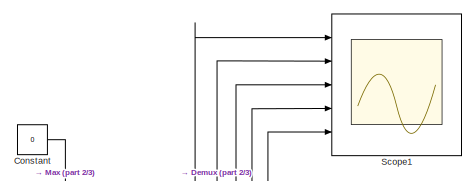
[diagram: root canvas - part 1/3, top left region]
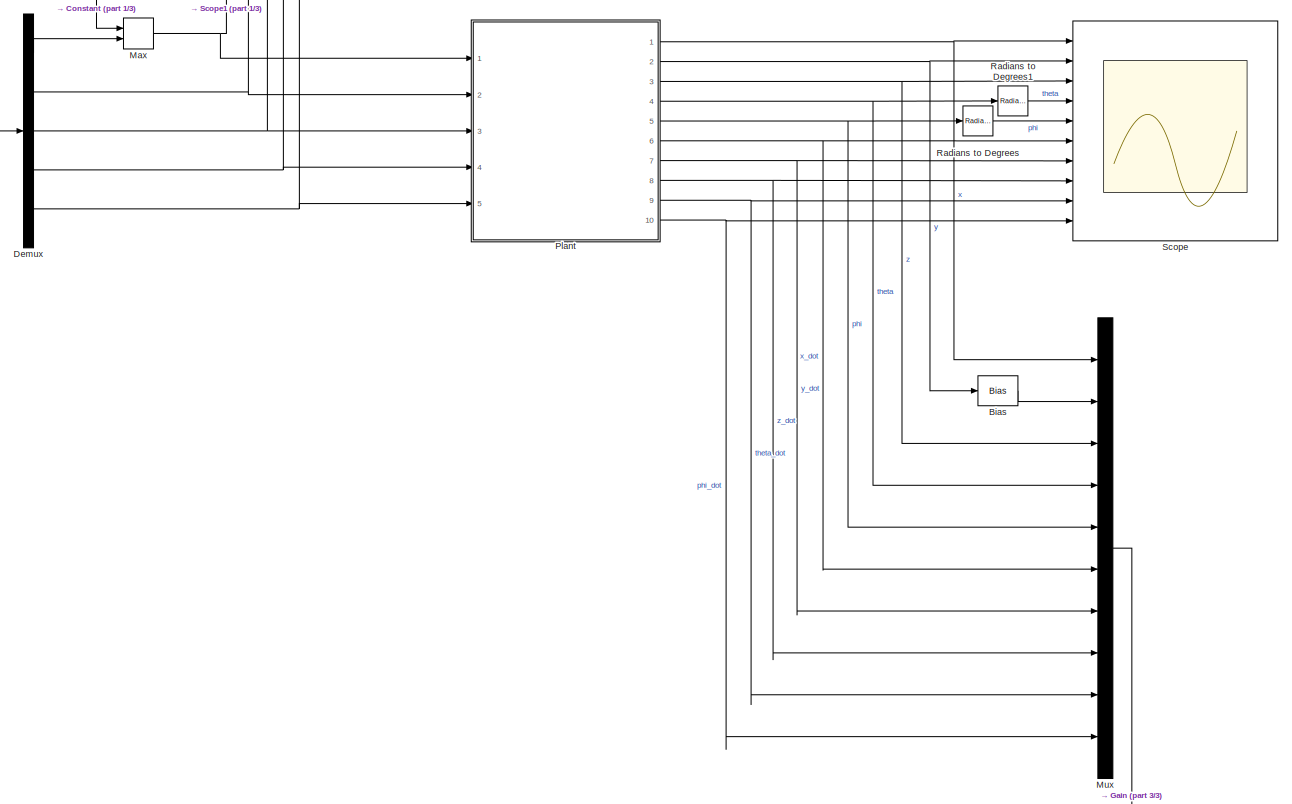
[diagram: root canvas - part 2/3, full width, middle band]
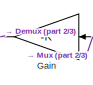
[diagram: root canvas - part 3/3, bottom center region]
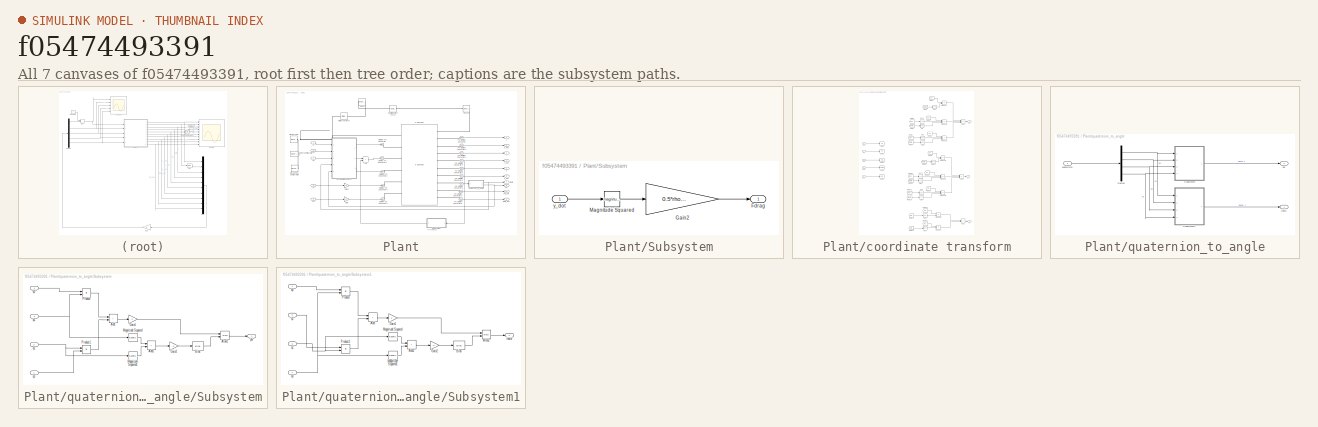
[diagram: thumbnail index - all 7 canvases of the model, root first then tree order]
MODEL slx_f05474493391
KIND model
CONFIG AbsTol = auto
CONFIG EnableMultiTasking = off
CONFIG FixedStep = 0.0001
CONFIG InitFcn = model_3d_init
CONFIG MaxStep = auto
CONFIG MinStep = auto
CONFIG RelTol = 1e-3
CONFIG SampleTimeConstraint = Unconstrained
CONFIG SolverName = FixedStepAuto
CONFIG StartTime = 0.0
CONFIG StopTime = 10
BLOCK [Bias] Bias
  Bias = -l/2
  SaturateOnIntegerOverflow = off
BLOCK [Constant] Constant
  Value = 0
BLOCK [Demux] Demux
  Outputs = 5
  Ports = [1, 5]
BLOCK [Gain] Gain
  Gain = -K
  Multiplication = Matrix(K*u)
  NameLocation = top
BLOCK [MinMax] Max
  Function = max
  Inputs = 2
  Ports = [2, 1]
BLOCK [Mux] Mux
  DisplayOption = bar
  Inputs = 10
  Ports = [10, 1]
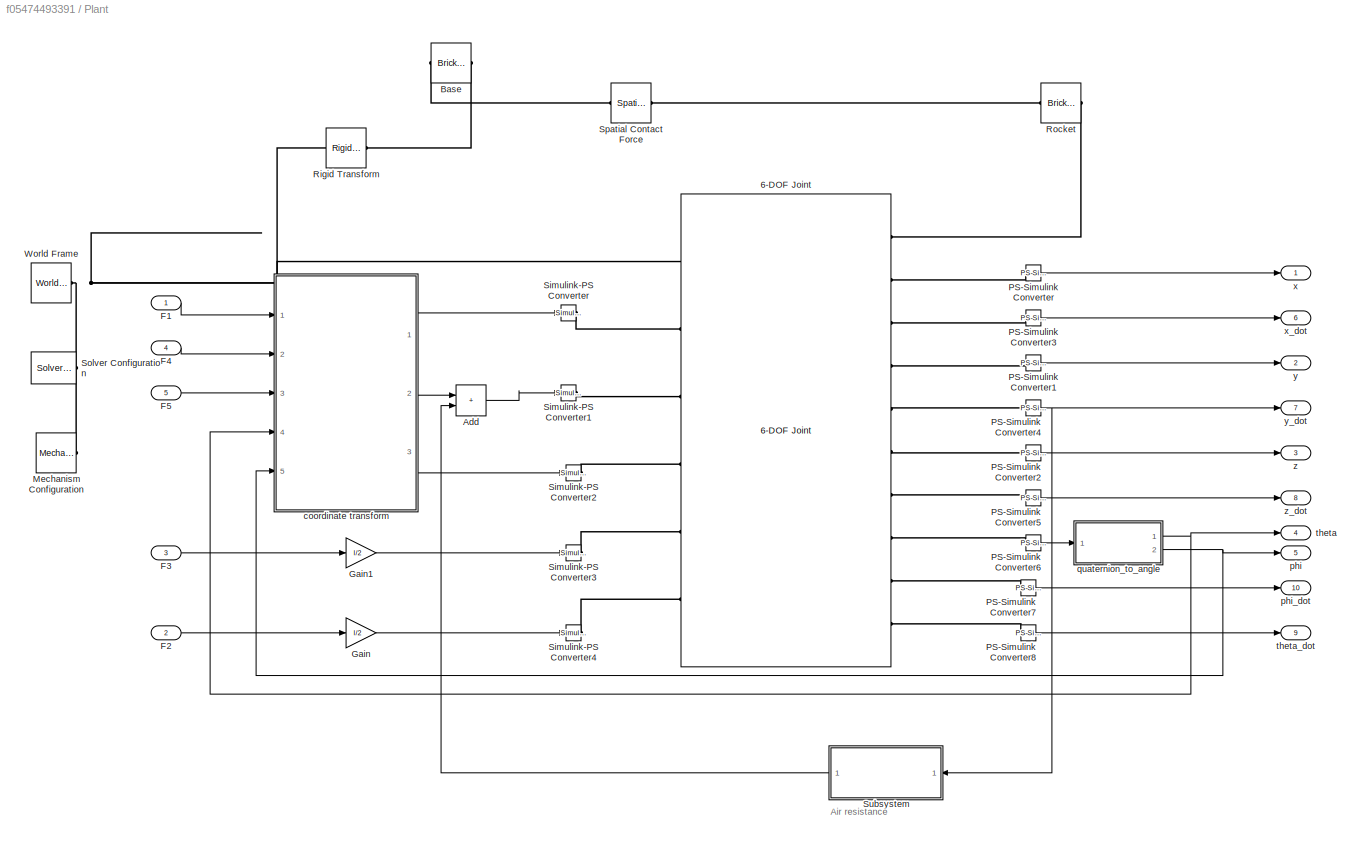
BLOCK [SubSystem] Plant
  Ports = [5, 10]
  RequestExecContextInheritance = off
BLOCK [Reference] Plant/6-DOF Joint  REF=sm_lib/Joints/6-DOF Joint
  Ports = [0, 0, 0, 0, 0, 6, 10]
  SourceBlock = sm_lib/Joints/6-DOF Joint
  SourceProductBaseCode = MS
  SourceType = 6-DOF Joint
BLOCK [Sum] Plant/Add
  IconShape = rectangular
  Ports = [2, 1]
BLOCK [Reference] Plant/Base  REF=sm_lib/Body Elements/Brick Solid
  Ports = [0, 0, 0, 0, 0, 1, 1]
  SourceBlock = sm_lib/Body Elements/Brick Solid
  SourceProductBaseCode = MS
  SourceType = Brick Solid
BLOCK [Inport] Plant/F1
BLOCK [Inport] Plant/F2
  Port = 2
BLOCK [Inport] Plant/F3
  Port = 3
BLOCK [Inport] Plant/F4
  Port = 4
BLOCK [Inport] Plant/F5
  Port = 5
BLOCK [Gain] Plant/Gain
  Gain = l/2
BLOCK [Gain] Plant/Gain1
  Gain = l/2
BLOCK [Reference] Plant/Mechanism Configuration  REF=sm_lib/Utilities/Mechanism
Configuration
  Ports = [0, 0, 0, 0, 0, 0, 1]
  SourceBlock = sm_lib/Utilities/Mechanism\nConfiguration
  SourceProductBaseCode = MS
  SourceType = Mechanism\nConfiguration
BLOCK [Reference] Plant/PS-Simulink Converter  REF=nesl_utility/PS-Simulink
Converter
  Ports = [0, 1, 0, 0, 0, 1]
  SourceBlock = nesl_utility/PS-Simulink\nConverter
  SourceProductBaseCode = SS,PW,VE
  SourceType = PS-Simulink\nConverter
BLOCK [Reference] Plant/PS-Simulink Converter1  REF=nesl_utility/PS-Simulink
Converter
  Ports = [0, 1, 0, 0, 0, 1]
  SourceBlock = nesl_utility/PS-Simulink\nConverter
  SourceProductBaseCode = SS,PW,VE
  SourceType = PS-Simulink\nConverter
BLOCK [Reference] Plant/PS-Simulink Converter2  REF=nesl_utility/PS-Simulink
Converter
  Ports = [0, 1, 0, 0, 0, 1]
  SourceBlock = nesl_utility/PS-Simulink\nConverter
  SourceProductBaseCode = SS,PW,VE
  SourceType = PS-Simulink\nConverter
BLOCK [Reference] Plant/PS-Simulink Converter3  REF=nesl_utility/PS-Simulink
Converter
  Ports = [0, 1, 0, 0, 0, 1]
  SourceBlock = nesl_utility/PS-Simulink\nConverter
  SourceProductBaseCode = SS,PW,VE
  SourceType = PS-Simulink\nConverter
BLOCK [Reference] Plant/PS-Simulink Converter4  REF=nesl_utility/PS-Simulink
Converter
  Ports = [0, 1, 0, 0, 0, 1]
  SourceBlock = nesl_utility/PS-Simulink\nConverter
  SourceProductBaseCode = SS,PW,VE
  SourceType = PS-Simulink\nConverter
BLOCK [Reference] Plant/PS-Simulink Converter5  REF=nesl_utility/PS-Simulink
Converter
  Ports = [0, 1, 0, 0, 0, 1]
  SourceBlock = nesl_utility/PS-Simulink\nConverter
  SourceProductBaseCode = SS,PW,VE
  SourceType = PS-Simulink\nConverter
BLOCK [Reference] Plant/PS-Simulink Converter6  REF=nesl_utility/PS-Simulink
Converter
  Ports = [0, 1, 0, 0, 0, 1]
  SourceBlock = nesl_utility/PS-Simulink\nConverter
  SourceProductBaseCode = SS,PW,VE
  SourceType = PS-Simulink\nConverter
BLOCK [Reference] Plant/PS-Simulink Converter7  REF=nesl_utility/PS-Simulink
Converter
  Ports = [0, 1, 0, 0, 0, 1]
  SourceBlock = nesl_utility/PS-Simulink\nConverter
  SourceProductBaseCode = SS,PW,VE
  SourceType = PS-Simulink\nConverter
BLOCK [Reference] Plant/PS-Simulink Converter8  REF=nesl_utility/PS-Simulink
Converter
  Ports = [0, 1, 0, 0, 0, 1]
  SourceBlock = nesl_utility/PS-Simulink\nConverter
  SourceProductBaseCode = SS,PW,VE
  SourceType = PS-Simulink\nConverter
BLOCK [Reference] Plant/Rigid Transform  REF=sm_lib/Frames and
Transforms/Rigid
Transform
  Ports = [0, 0, 0, 0, 0, 1, 1]
  SourceBlock = sm_lib/Frames and\nTransforms/Rigid\nTransform
  SourceProductBaseCode = MS
  SourceType = Rigid\nTransform
BLOCK [Reference] Plant/Rocket  REF=sm_lib/Body Elements/Brick Solid
  Ports = [0, 0, 0, 0, 0, 1, 1]
  SourceBlock = sm_lib/Body Elements/Brick Solid
  SourceProductBaseCode = MS
  SourceType = Brick Solid
BLOCK [Reference] Plant/Simulink-PS Converter  REF=nesl_utility/Simulink-PS
Converter
  Ports = [1, 0, 0, 0, 0, 0, 1]
  SourceBlock = nesl_utility/Simulink-PS\nConverter
  SourceProductBaseCode = SS,PW,VE
  SourceType = Simulink-PS\nConverter
BLOCK [Reference] Plant/Simulink-PS Converter1  REF=nesl_utility/Simulink-PS
Converter
  Ports = [1, 0, 0, 0, 0, 0, 1]
  SourceBlock = nesl_utility/Simulink-PS\nConverter
  SourceProductBaseCode = SS,PW,VE
  SourceType = Simulink-PS\nConverter
BLOCK [Reference] Plant/Simulink-PS Converter2  REF=nesl_utility/Simulink-PS
Converter
  Ports = [1, 0, 0, 0, 0, 0, 1]
  SourceBlock = nesl_utility/Simulink-PS\nConverter
  SourceProductBaseCode = SS,PW,VE
  SourceType = Simulink-PS\nConverter
BLOCK [Reference] Plant/Simulink-PS Converter3  REF=nesl_utility/Simulink-PS
Converter
  Ports = [1, 0, 0, 0, 0, 0, 1]
  SourceBlock = nesl_utility/Simulink-PS\nConverter
  SourceProductBaseCode = SS,PW,VE
  SourceType = Simulink-PS\nConverter
BLOCK [Reference] Plant/Simulink-PS Converter4  REF=nesl_utility/Simulink-PS
Converter
  Ports = [1, 0, 0, 0, 0, 0, 1]
  SourceBlock = nesl_utility/Simulink-PS\nConverter
  SourceProductBaseCode = SS,PW,VE
  SourceType = Simulink-PS\nConverter
BLOCK [Reference] Plant/Solver Configuration  REF=nesl_utility/Solver
Configuration
  Ports = [0, 0, 0, 0, 0, 0, 1]
  SourceBlock = nesl_utility/Solver\nConfiguration
  SourceProductBaseCode = SS,PW,VE
  SourceType = Solver\nConfiguration
BLOCK [Reference] Plant/Spatial Contact Force  REF=sm_lib/Forces and
Torques/Spatial
Contact Force
  Ports = [0, 0, 0, 0, 0, 1, 1]
  SourceBlock = sm_lib/Forces and\nTorques/Spatial\nContact Force
  SourceProductBaseCode = MS
  SourceType = Spatial\nContact Force
BLOCK [SubSystem] Plant/Subsystem
  NameLocation = top
  Ports = [1, 1]
  RequestExecContextInheritance = off
BLOCK [Outport] Plant/Subsystem/Fdrag
BLOCK [Gain] Plant/Subsystem/Gain2
  Gain = 0.5*rho*As*Cd
BLOCK [Math] Plant/Subsystem/Magnitude Squared
  Operator = magnitude^2
  Ports = [1, 1]
BLOCK [Inport] Plant/Subsystem/y_dot
BLOCK [Reference] Plant/World Frame  REF=sm_lib/Frames and
Transforms/World Frame
  Ports = [0, 0, 0, 0, 0, 0, 1]
  SourceBlock = sm_lib/Frames and\nTransforms/World Frame
  SourceProductBaseCode = MS
  SourceType = World Frame
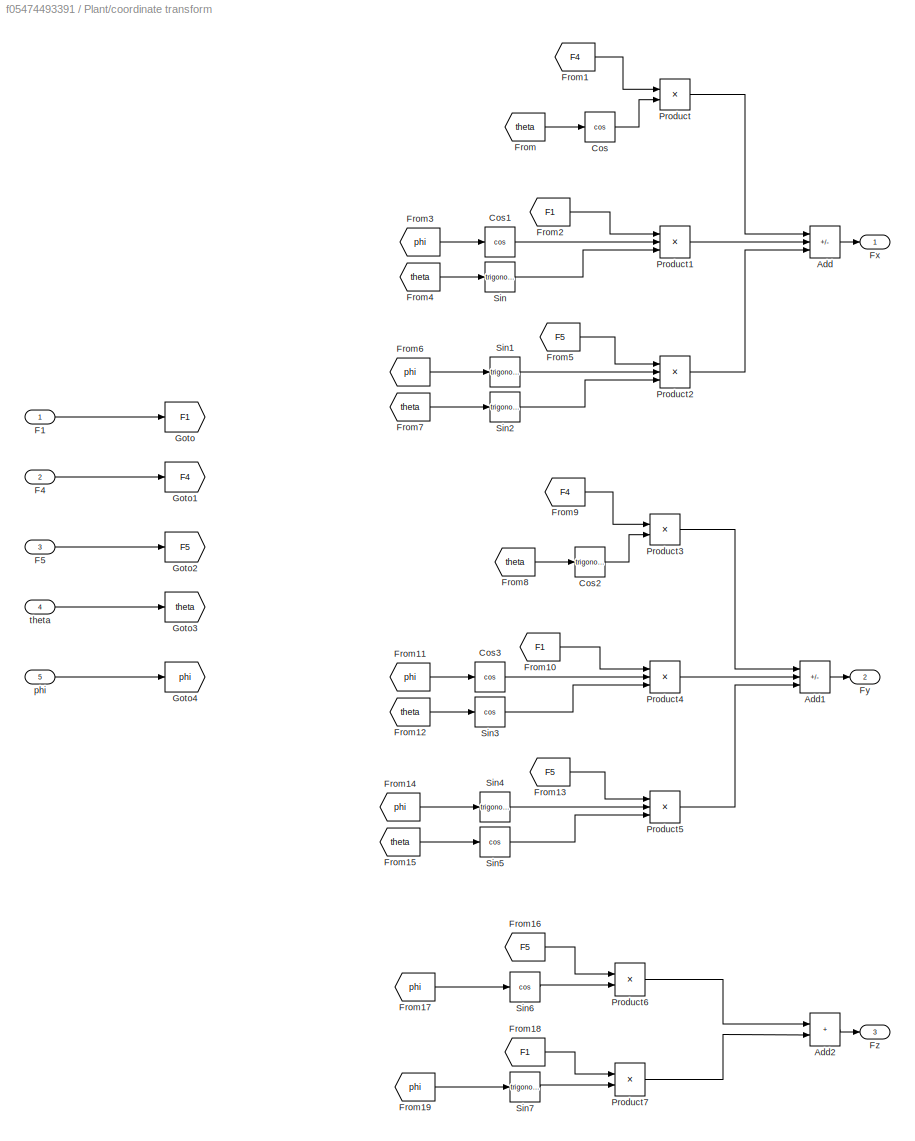
BLOCK [SubSystem] Plant/coordinate transform
  Ports = [5, 3]
  RequestExecContextInheritance = off
BLOCK [Sum] Plant/coordinate transform/Add
  IconShape = rectangular
  Inputs = +-+
  Ports = [3, 1]
BLOCK [Sum] Plant/coordinate transform/Add1
  IconShape = rectangular
  Inputs = ++-
  Ports = [3, 1]
BLOCK [Sum] Plant/coordinate transform/Add2
  IconShape = rectangular
  Ports = [2, 1]
BLOCK [Trigonometry] Plant/coordinate transform/Cos
  Operator = cos
  Ports = [1, 1]
BLOCK [Trigonometry] Plant/coordinate transform/Cos1
  Operator = cos
  Ports = [1, 1]
BLOCK [Trigonometry] Plant/coordinate transform/Cos2
  Ports = [1, 1]
BLOCK [Trigonometry] Plant/coordinate transform/Cos3
  Operator = cos
  Ports = [1, 1]
BLOCK [Inport] Plant/coordinate transform/F1
BLOCK [Inport] Plant/coordinate transform/F4
  Port = 2
BLOCK [Inport] Plant/coordinate transform/F5
  Port = 3
BLOCK [From] Plant/coordinate transform/From
  GotoTag = theta
BLOCK [From] Plant/coordinate transform/From1
  GotoTag = F4
BLOCK [From] Plant/coordinate transform/From10
  GotoTag = F1
BLOCK [From] Plant/coordinate transform/From11
  GotoTag = phi
BLOCK [From] Plant/coordinate transform/From12
  GotoTag = theta
BLOCK [From] Plant/coordinate transform/From13
  GotoTag = F5
BLOCK [From] Plant/coordinate transform/From14
  GotoTag = phi
BLOCK [From] Plant/coordinate transform/From15
  GotoTag = theta
BLOCK [From] Plant/coordinate transform/From16
  GotoTag = F5
BLOCK [From] Plant/coordinate transform/From17
  GotoTag = phi
BLOCK [From] Plant/coordinate transform/From18
  GotoTag = F1
BLOCK [From] Plant/coordinate transform/From19
  GotoTag = phi
BLOCK [From] Plant/coordinate transform/From2
  GotoTag = F1
BLOCK [From] Plant/coordinate transform/From3
  GotoTag = phi
BLOCK [From] Plant/coordinate transform/From4
  GotoTag = theta
BLOCK [From] Plant/coordinate transform/From5
  GotoTag = F5
BLOCK [From] Plant/coordinate transform/From6
  GotoTag = phi
BLOCK [From] Plant/coordinate transform/From7
  GotoTag = theta
BLOCK [From] Plant/coordinate transform/From8
  GotoTag = theta
BLOCK [From] Plant/coordinate transform/From9
  GotoTag = F4
BLOCK [Outport] Plant/coordinate transform/Fx
BLOCK [Outport] Plant/coordinate transform/Fy
  Port = 2
BLOCK [Outport] Plant/coordinate transform/Fz
  Port = 3
BLOCK [Goto] Plant/coordinate transform/Goto
  GotoTag = F1
BLOCK [Goto] Plant/coordinate transform/Goto1
  GotoTag = F4
BLOCK [Goto] Plant/coordinate transform/Goto2
  GotoTag = F5
BLOCK [Goto] Plant/coordinate transform/Goto3
  GotoTag = theta
BLOCK [Goto] Plant/coordinate transform/Goto4
  GotoTag = phi
BLOCK [Product] Plant/coordinate transform/Product
  Ports = [2, 1]
BLOCK [Product] Plant/coordinate transform/Product1
  Inputs = 3
  Ports = [3, 1]
BLOCK [Product] Plant/coordinate transform/Product2
  Inputs = 3
  Ports = [3, 1]
BLOCK [Product] Plant/coordinate transform/Product3
  Ports = [2, 1]
BLOCK [Product] Plant/coordinate transform/Product4
  Inputs = 3
  Ports = [3, 1]
BLOCK [Product] Plant/coordinate transform/Product5
  Inputs = 3
  Ports = [3, 1]
BLOCK [Product] Plant/coordinate transform/Product6
  Ports = [2, 1]
BLOCK [Product] Plant/coordinate transform/Product7
  Ports = [2, 1]
BLOCK [Trigonometry] Plant/coordinate transform/Sin
  Ports = [1, 1]
BLOCK [Trigonometry] Plant/coordinate transform/Sin1
  Ports = [1, 1]
BLOCK [Trigonometry] Plant/coordinate transform/Sin2
  Ports = [1, 1]
BLOCK [Trigonometry] Plant/coordinate transform/Sin3
  Operator = cos
  Ports = [1, 1]
BLOCK [Trigonometry] Plant/coordinate transform/Sin4
  Ports = [1, 1]
BLOCK [Trigonometry] Plant/coordinate transform/Sin5
  Operator = cos
  Ports = [1, 1]
BLOCK [Trigonometry] Plant/coordinate transform/Sin6
  Operator = cos
  Ports = [1, 1]
BLOCK [Trigonometry] Plant/coordinate transform/Sin7
  Ports = [1, 1]
BLOCK [Inport] Plant/coordinate transform/phi
  Port = 5
BLOCK [Inport] Plant/coordinate transform/theta
  Port = 4
BLOCK [Outport] Plant/phi
  Port = 5
BLOCK [Outport] Plant/phi_dot
  Port = 10
BLOCK [SubSystem] Plant/quaternion_to_angle
  Ports = [1, 2]
  RequestExecContextInheritance = off
BLOCK [Demux] Plant/quaternion_to_angle/Demux
  Ports = [1, 4]
BLOCK [SubSystem] Plant/quaternion_to_angle/Subsystem
  Ports = [4, 1]
  RequestExecContextInheritance = off
BLOCK [Sum] Plant/quaternion_to_angle/Subsystem/Add
  IconShape = rectangular
  Ports = [2, 1]
BLOCK [Sum] Plant/quaternion_to_angle/Subsystem/Add1
  IconShape = rectangular
  Ports = [2, 1]
BLOCK [Trigonometry] Plant/quaternion_to_angle/Subsystem/Atan2
  Operator = atan2
  Ports = [2, 1]
BLOCK [Bias] Plant/quaternion_to_angle/Subsystem/Bias
  Bias = 1
  SaturateOnIntegerOverflow = off
BLOCK [Gain] Plant/quaternion_to_angle/Subsystem/Gain1
  Gain = 2
BLOCK [Gain] Plant/quaternion_to_angle/Subsystem/Gain2
  Gain = -2
BLOCK [Math] Plant/quaternion_to_angle/Subsystem/Magnitude Squared
  Operator = magnitude^2
  Ports = [1, 1]
BLOCK [Math] Plant/quaternion_to_angle/Subsystem/Magnitude Squared1
  Operator = magnitude^2
  Ports = [1, 1]
BLOCK [Product] Plant/quaternion_to_angle/Subsystem/Product
  Ports = [2, 1]
BLOCK [Product] Plant/quaternion_to_angle/Subsystem/Product1
  Ports = [2, 1]
BLOCK [Outport] Plant/quaternion_to_angle/Subsystem/phi
BLOCK [Inport] Plant/quaternion_to_angle/Subsystem/q0
BLOCK [Inport] Plant/quaternion_to_angle/Subsystem/q1
  Port = 2
BLOCK [Inport] Plant/quaternion_to_angle/Subsystem/q2
  Port = 3
BLOCK [Inport] Plant/quaternion_to_angle/Subsystem/q3
  Port = 4
BLOCK [SubSystem] Plant/quaternion_to_angle/Subsystem1
  Ports = [4, 1]
  RequestExecContextInheritance = off
BLOCK [Sum] Plant/quaternion_to_angle/Subsystem1/Add
  IconShape = rectangular
  Ports = [2, 1]
BLOCK [Sum] Plant/quaternion_to_angle/Subsystem1/Add1
  IconShape = rectangular
  Ports = [2, 1]
BLOCK [Trigonometry] Plant/quaternion_to_angle/Subsystem1/Atan2
  Operator = atan2
  Ports = [2, 1]
BLOCK [Bias] Plant/quaternion_to_angle/Subsystem1/Bias
  Bias = 1
  SaturateOnIntegerOverflow = off
BLOCK [Gain] Plant/quaternion_to_angle/Subsystem1/Gain1
  Gain = 2
BLOCK [Gain] Plant/quaternion_to_angle/Subsystem1/Gain2
  Gain = -2
BLOCK [Math] Plant/quaternion_to_angle/Subsystem1/Magnitude Squared
  Operator = magnitude^2
  Ports = [1, 1]
BLOCK [Math] Plant/quaternion_to_angle/Subsystem1/Magnitude Squared1
  Operator = magnitude^2
  Ports = [1, 1]
BLOCK [Product] Plant/quaternion_to_angle/Subsystem1/Product
  Ports = [2, 1]
BLOCK [Product] Plant/quaternion_to_angle/Subsystem1/Product1
  Ports = [2, 1]
BLOCK [Inport] Plant/quaternion_to_angle/Subsystem1/q0
BLOCK [Inport] Plant/quaternion_to_angle/Subsystem1/q1
  Port = 2
BLOCK [Inport] Plant/quaternion_to_angle/Subsystem1/q2
  Port = 3
BLOCK [Inport] Plant/quaternion_to_angle/Subsystem1/q3
  Port = 4
BLOCK [Outport] Plant/quaternion_to_angle/Subsystem1/theta
BLOCK [Outport] Plant/quaternion_to_angle/phi
  Port = 2
BLOCK [Inport] Plant/quaternion_to_angle/quaternion
BLOCK [Outport] Plant/quaternion_to_angle/theta
BLOCK [Outport] Plant/theta
  Port = 4
BLOCK [Outport] Plant/theta_dot
  Port = 9
BLOCK [Outport] Plant/x
BLOCK [Outport] Plant/x_dot
  Port = 6
BLOCK [Outport] Plant/y
  Port = 2
BLOCK [Outport] Plant/y_dot
  Port = 7
BLOCK [Outport] Plant/z
  Port = 3
BLOCK [Outport] Plant/z_dot
  Port = 8
BLOCK [Reference] Radians to Degrees  REF=simulink_extras/Transformations/Radians
to Degrees
  Ports = [1, 1]
  SourceBlock = simulink_extras/Transformations/Radians\nto Degrees
  SourceProductBaseCode = SL
  SourceType = RadiansToDegrees
BLOCK [Reference] Radians to Degrees1  REF=simulink_extras/Transformations/Radians
to Degrees
  Ports = [1, 1]
  SourceBlock = simulink_extras/Transformations/Radians\nto Degrees
  SourceProductBaseCode = SL
  SourceType = RadiansToDegrees
BLOCK [Scope] Scope
  Floating = off
  NumInputPorts = 10
  Ports = [10]
  ScopeSpecificationString = Simulink.scopes.TimeScopeBlockCfg('CurrentConfiguration', extmgr.ConfigurationSet(extmgr.Configuration('Core','General UI',true),extmgr.Configuration('Core','Source UI',true),extmgr.Configuration('Sources','WiredSimulink',true),extmgr.Configuration('Visuals','Time Domain',true,'SerializedDisplays',{struct('MinYLimReal','-0.06678','MaxYLimReal','0.12607','YLabelReal','','MinYLimMag','0.00000','MaxY...<+9915ch>
BLOCK [Scope] Scope1
  Floating = off
  NumInputPorts = 5
  Ports = [5]
  ScopeSpecificationString = Simulink.scopes.TimeScopeBlockCfg('CurrentConfiguration', extmgr.ConfigurationSet(extmgr.Configuration('Core','General UI',true),extmgr.Configuration('Core','Source UI',true),extmgr.Configuration('Sources','WiredSimulink',true,'DataLoggingVariableName','ScopeData1'),extmgr.Configuration('Visuals','Time Domain',true,'SerializedDisplays',{struct('MinYLimReal','-1.33026','MaxYLimReal','11.97234','YLa...<+6184ch>
ANNOTATION Plant: Air resistance
LINE Bias:1 -> Mux:2
LINE Constant:1 -> Max:1
LINE Demux:1 -> Max:2
NET Demux:2 -> Plant:2, Scope1:2
NET Demux:3 -> Plant:3, Scope1:3
NET Demux:4 -> Plant:4, Scope1:4
NET Demux:5 -> Plant:5, Scope1:5
LINE Gain:1 -> Demux:1
NET Max:1 -> Plant:1, Scope1:1
LINE Mux:1 -> Gain:1
LINE Plant/Add:1 -> Plant/Simulink-PS Converter1:1
LINE Plant/F1:1 -> Plant/coordinate transform:1
LINE Plant/F2:1 -> Plant/Gain:1
LINE Plant/F3:1 -> Plant/Gain1:1
LINE Plant/F4:1 -> Plant/coordinate transform:2
LINE Plant/F5:1 -> Plant/coordinate transform:3
LINE Plant/Gain1:1 -> Plant/Simulink-PS Converter3:1
LINE Plant/Gain:1 -> Plant/Simulink-PS Converter4:1
LINE Plant/PS-Simulink Converter1:1 -> Plant/y:1
LINE Plant/PS-Simulink Converter2:1 -> Plant/z:1
LINE Plant/PS-Simulink Converter3:1 -> Plant/x_dot:1
NET Plant/PS-Simulink Converter4:1 -> Plant/Subsystem:1, Plant/y_dot:1
LINE Plant/PS-Simulink Converter5:1 -> Plant/z_dot:1
LINE Plant/PS-Simulink Converter6:1 -> Plant/quaternion_to_angle:1
LINE Plant/PS-Simulink Converter7:1 -> Plant/phi_dot:1
LINE Plant/PS-Simulink Converter8:1 -> Plant/theta_dot:1
LINE Plant/PS-Simulink Converter:1 -> Plant/x:1
LINE Plant/Subsystem/Gain2:1 -> Plant/Subsystem/Fdrag:1
LINE Plant/Subsystem/Magnitude Squared:1 -> Plant/Subsystem/Gain2:1
LINE Plant/Subsystem/y_dot:1 -> Plant/Subsystem/Magnitude Squared:1
LINE Plant/Subsystem:1 -> Plant/Add:2
LINE Plant/coordinate transform/Add1:1 -> Plant/coordinate transform/Fy:1
LINE Plant/coordinate transform/Add2:1 -> Plant/coordinate transform/Fz:1
LINE Plant/coordinate transform/Add:1 -> Plant/coordinate transform/Fx:1
LINE Plant/coordinate transform/Cos1:1 -> Plant/coordinate transform/Product1:2
LINE Plant/coordinate transform/Cos2:1 -> Plant/coordinate transform/Product3:2
LINE Plant/coordinate transform/Cos3:1 -> Plant/coordinate transform/Product4:2
LINE Plant/coordinate transform/Cos:1 -> Plant/coordinate transform/Product:2
LINE Plant/coordinate transform/F1:1 -> Plant/coordinate transform/Goto:1
LINE Plant/coordinate transform/F4:1 -> Plant/coordinate transform/Goto1:1
LINE Plant/coordinate transform/F5:1 -> Plant/coordinate transform/Goto2:1
LINE Plant/coordinate transform/From10:1 -> Plant/coordinate transform/Product4:1
LINE Plant/coordinate transform/From11:1 -> Plant/coordinate transform/Cos3:1
LINE Plant/coordinate transform/From12:1 -> Plant/coordinate transform/Sin3:1
LINE Plant/coordinate transform/From13:1 -> Plant/coordinate transform/Product5:1
LINE Plant/coordinate transform/From14:1 -> Plant/coordinate transform/Sin4:1
LINE Plant/coordinate transform/From15:1 -> Plant/coordinate transform/Sin5:1
LINE Plant/coordinate transform/From16:1 -> Plant/coordinate transform/Product6:1
LINE Plant/coordinate transform/From17:1 -> Plant/coordinate transform/Sin6:1
LINE Plant/coordinate transform/From18:1 -> Plant/coordinate transform/Product7:1
LINE Plant/coordinate transform/From19:1 -> Plant/coordinate transform/Sin7:1
LINE Plant/coordinate transform/From1:1 -> Plant/coordinate transform/Product:1
LINE Plant/coordinate transform/From2:1 -> Plant/coordinate transform/Product1:1
LINE Plant/coordinate transform/From3:1 -> Plant/coordinate transform/Cos1:1
LINE Plant/coordinate transform/From4:1 -> Plant/coordinate transform/Sin:1
LINE Plant/coordinate transform/From5:1 -> Plant/coordinate transform/Product2:1
LINE Plant/coordinate transform/From6:1 -> Plant/coordinate transform/Sin1:1
LINE Plant/coordinate transform/From7:1 -> Plant/coordinate transform/Sin2:1
LINE Plant/coordinate transform/From8:1 -> Plant/coordinate transform/Cos2:1
LINE Plant/coordinate transform/From9:1 -> Plant/coordinate transform/Product3:1
LINE Plant/coordinate transform/From:1 -> Plant/coordinate transform/Cos:1
LINE Plant/coordinate transform/Product1:1 -> Plant/coordinate transform/Add:2
LINE Plant/coordinate transform/Product2:1 -> Plant/coordinate transform/Add:3
LINE Plant/coordinate transform/Product3:1 -> Plant/coordinate transform/Add1:1
LINE Plant/coordinate transform/Product4:1 -> Plant/coordinate transform/Add1:2
LINE Plant/coordinate transform/Product5:1 -> Plant/coordinate transform/Add1:3
LINE Plant/coordinate transform/Product6:1 -> Plant/coordinate transform/Add2:1
LINE Plant/coordinate transform/Product7:1 -> Plant/coordinate transform/Add2:2
LINE Plant/coordinate transform/Product:1 -> Plant/coordinate transform/Add:1
LINE Plant/coordinate transform/Sin1:1 -> Plant/coordinate transform/Product2:2
LINE Plant/coordinate transform/Sin2:1 -> Plant/coordinate transform/Product2:3
LINE Plant/coordinate transform/Sin3:1 -> Plant/coordinate transform/Product4:3
LINE Plant/coordinate transform/Sin4:1 -> Plant/coordinate transform/Product5:2
LINE Plant/coordinate transform/Sin5:1 -> Plant/coordinate transform/Product5:3
LINE Plant/coordinate transform/Sin6:1 -> Plant/coordinate transform/Product6:2
LINE Plant/coordinate transform/Sin7:1 -> Plant/coordinate transform/Product7:2
LINE Plant/coordinate transform/Sin:1 -> Plant/coordinate transform/Product1:3
LINE Plant/coordinate transform/phi:1 -> Plant/coordinate transform/Goto4:1
LINE Plant/coordinate transform/theta:1 -> Plant/coordinate transform/Goto3:1
LINE Plant/coordinate transform:1 -> Plant/Simulink-PS Converter:1
LINE Plant/coordinate transform:2 -> Plant/Add:1
LINE Plant/coordinate transform:3 -> Plant/Simulink-PS Converter2:1
NET Plant/quaternion_to_angle/Demux:1 -> Plant/quaternion_to_angle/Subsystem1:1, Plant/quaternion_to_angle/Subsystem:1
NET Plant/quaternion_to_angle/Demux:2 -> Plant/quaternion_to_angle/Subsystem1:2, Plant/quaternion_to_angle/Subsystem:2
NET Plant/quaternion_to_angle/Demux:3 -> Plant/quaternion_to_angle/Subsystem1:3, Plant/quaternion_to_angle/Subsystem:3
NET Plant/quaternion_to_angle/Demux:4 -> Plant/quaternion_to_angle/Subsystem1:4, Plant/quaternion_to_angle/Subsystem:4
LINE Plant/quaternion_to_angle/Subsystem/Add1:1 -> Plant/quaternion_to_angle/Subsystem/Gain2:1
LINE Plant/quaternion_to_angle/Subsystem/Add:1 -> Plant/quaternion_to_angle/Subsystem/Gain1:1
LINE Plant/quaternion_to_angle/Subsystem/Atan2:1 -> Plant/quaternion_to_angle/Subsystem/phi:1
LINE Plant/quaternion_to_angle/Subsystem/Bias:1 -> Plant/quaternion_to_angle/Subsystem/Atan2:2
LINE Plant/quaternion_to_angle/Subsystem/Gain1:1 -> Plant/quaternion_to_angle/Subsystem/Atan2:1
LINE Plant/quaternion_to_angle/Subsystem/Gain2:1 -> Plant/quaternion_to_angle/Subsystem/Bias:1
LINE Plant/quaternion_to_angle/Subsystem/Magnitude Squared1:1 -> Plant/quaternion_to_angle/Subsystem/Add1:2
LINE Plant/quaternion_to_angle/Subsystem/Magnitude Squared:1 -> Plant/quaternion_to_angle/Subsystem/Add1:1
LINE Plant/quaternion_to_angle/Subsystem/Product1:1 -> Plant/quaternion_to_angle/Subsystem/Add:2
LINE Plant/quaternion_to_angle/Subsystem/Product:1 -> Plant/quaternion_to_angle/Subsystem/Add:1
LINE Plant/quaternion_to_angle/Subsystem/q0:1 -> Plant/quaternion_to_angle/Subsystem/Product:1
NET Plant/quaternion_to_angle/Subsystem/q1:1 -> Plant/quaternion_to_angle/Subsystem/Magnitude Squared:1, Plant/quaternion_to_angle/Subsystem/Product:2
NET Plant/quaternion_to_angle/Subsystem/q2:1 -> Plant/quaternion_to_angle/Subsystem/Magnitude Squared1:1, Plant/quaternion_to_angle/Subsystem/Product1:1
LINE Plant/quaternion_to_angle/Subsystem/q3:1 -> Plant/quaternion_to_angle/Subsystem/Product1:2
LINE Plant/quaternion_to_angle/Subsystem1/Add1:1 -> Plant/quaternion_to_angle/Subsystem1/Gain2:1
LINE Plant/quaternion_to_angle/Subsystem1/Add:1 -> Plant/quaternion_to_angle/Subsystem1/Gain1:1
LINE Plant/quaternion_to_angle/Subsystem1/Atan2:1 -> Plant/quaternion_to_angle/Subsystem1/theta:1
LINE Plant/quaternion_to_angle/Subsystem1/Bias:1 -> Plant/quaternion_to_angle/Subsystem1/Atan2:2
LINE Plant/quaternion_to_angle/Subsystem1/Gain1:1 -> Plant/quaternion_to_angle/Subsystem1/Atan2:1
LINE Plant/quaternion_to_angle/Subsystem1/Gain2:1 -> Plant/quaternion_to_angle/Subsystem1/Bias:1
LINE Plant/quaternion_to_angle/Subsystem1/Magnitude Squared1:1 -> Plant/quaternion_to_angle/Subsystem1/Add1:2
LINE Plant/quaternion_to_angle/Subsystem1/Magnitude Squared:1 -> Plant/quaternion_to_angle/Subsystem1/Add1:1
LINE Plant/quaternion_to_angle/Subsystem1/Product1:1 -> Plant/quaternion_to_angle/Subsystem1/Add:2
LINE Plant/quaternion_to_angle/Subsystem1/Product:1 -> Plant/quaternion_to_angle/Subsystem1/Add:1
LINE Plant/quaternion_to_angle/Subsystem1/q0:1 -> Plant/quaternion_to_angle/Subsystem1/Product:1
LINE Plant/quaternion_to_angle/Subsystem1/q1:1 -> Plant/quaternion_to_angle/Subsystem1/Product1:1
NET Plant/quaternion_to_angle/Subsystem1/q2:1 -> Plant/quaternion_to_angle/Subsystem1/Magnitude Squared:1, Plant/quaternion_to_angle/Subsystem1/Product1:2
NET Plant/quaternion_to_angle/Subsystem1/q3:1 -> Plant/quaternion_to_angle/Subsystem1/Magnitude Squared1:1, Plant/quaternion_to_angle/Subsystem1/Product:2
LINE Plant/quaternion_to_angle/Subsystem1:1 -> Plant/quaternion_to_angle/theta:1
LINE Plant/quaternion_to_angle/Subsystem:1 -> Plant/quaternion_to_angle/phi:1
LINE Plant/quaternion_to_angle/quaternion:1 -> Plant/quaternion_to_angle/Demux:1
NET Plant/quaternion_to_angle:1 -> Plant/coordinate transform:4, Plant/theta:1
NET Plant/quaternion_to_angle:2 -> Plant/coordinate transform:5, Plant/phi:1
NET Plant:1 -> Mux:1, Scope:1
NET Plant:10 -> Mux:10, Scope:10
NET Plant:2 -> Bias:1, Scope:2
NET Plant:3 -> Mux:3, Scope:3
NET Plant:4 -> Mux:4, Radians to Degrees1:1
NET Plant:5 -> Mux:5, Radians to Degrees:1
NET Plant:6 -> Mux:6, Scope:6
NET Plant:7 -> Mux:7, Scope:7
NET Plant:8 -> Mux:8, Scope:8
NET Plant:9 -> Mux:9, Scope:9
LINE Radians to Degrees1:1 -> Scope:4
LINE Radians to Degrees:1 -> Scope:5
PNET net1: Plant/6-DOF Joint:LConn1 -- Plant/Mechanism Configuration:RConn1 -- Plant/Rigid Transform:LConn1 -- Plant/Solver Configuration:RConn1 -- Plant/World Frame:RConn1
PLINE Plant/6-DOF Joint:LConn2 -- Plant/Simulink-PS Converter:RConn1
PLINE Plant/6-DOF Joint:LConn3 -- Plant/Simulink-PS Converter1:RConn1
PLINE Plant/6-DOF Joint:LConn4 -- Plant/Simulink-PS Converter2:RConn1
PLINE Plant/6-DOF Joint:LConn5 -- Plant/Simulink-PS Converter3:RConn1
PLINE Plant/6-DOF Joint:LConn6 -- Plant/Simulink-PS Converter4:RConn1
PLINE Plant/6-DOF Joint:RConn1 -- Plant/Rocket:RConn1
PLINE Plant/6-DOF Joint:RConn10 -- Plant/PS-Simulink Converter8:LConn1
PLINE Plant/6-DOF Joint:RConn2 -- Plant/PS-Simulink Converter:LConn1
PLINE Plant/6-DOF Joint:RConn3 -- Plant/PS-Simulink Converter3:LConn1
PLINE Plant/6-DOF Joint:RConn4 -- Plant/PS-Simulink Converter1:LConn1
PLINE Plant/6-DOF Joint:RConn5 -- Plant/PS-Simulink Converter4:LConn1
PLINE Plant/6-DOF Joint:RConn6 -- Plant/PS-Simulink Converter2:LConn1
PLINE Plant/6-DOF Joint:RConn7 -- Plant/PS-Simulink Converter5:LConn1
PLINE Plant/6-DOF Joint:RConn8 -- Plant/PS-Simulink Converter6:LConn1
PLINE Plant/6-DOF Joint:RConn9 -- Plant/PS-Simulink Converter7:LConn1
PLINE Plant/Base:LConn1 -- Plant/Spatial Contact Force:LConn1
PLINE Plant/Base:RConn1 -- Plant/Rigid Transform:RConn1
PLINE Plant/Rocket:LConn1 -- Plant/Spatial Contact Force:RConn1
note: NET lines group one-source signal fan-out (src -> all destinations, sorted); 1:1 wires keep LINE; PNET lines group multi-terminal physical nets as a canonical sorted terminal list (undirected conserving connections); 2-terminal nets keep the pairwise PLINE form
